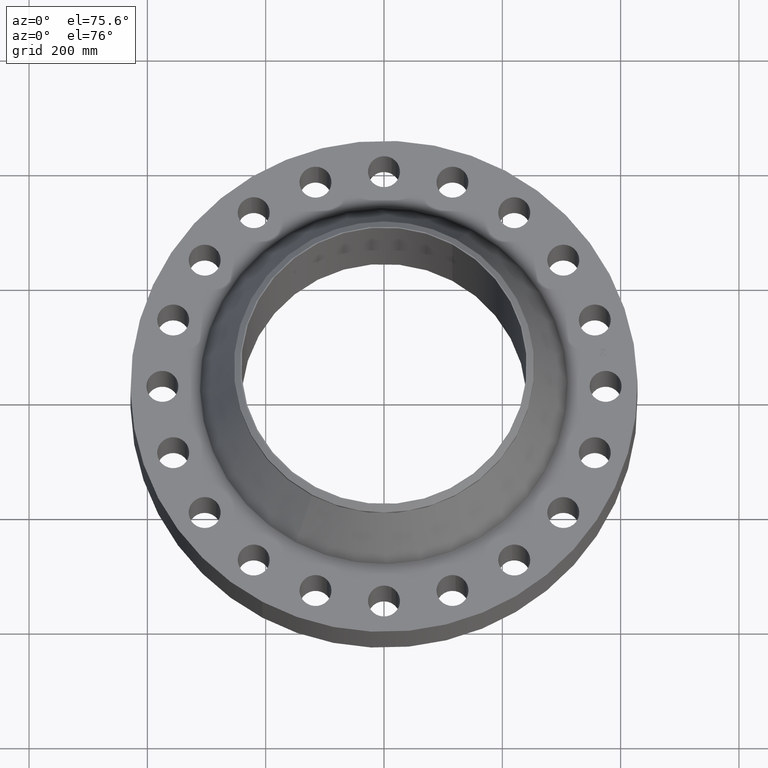
[diagram: clean part render]
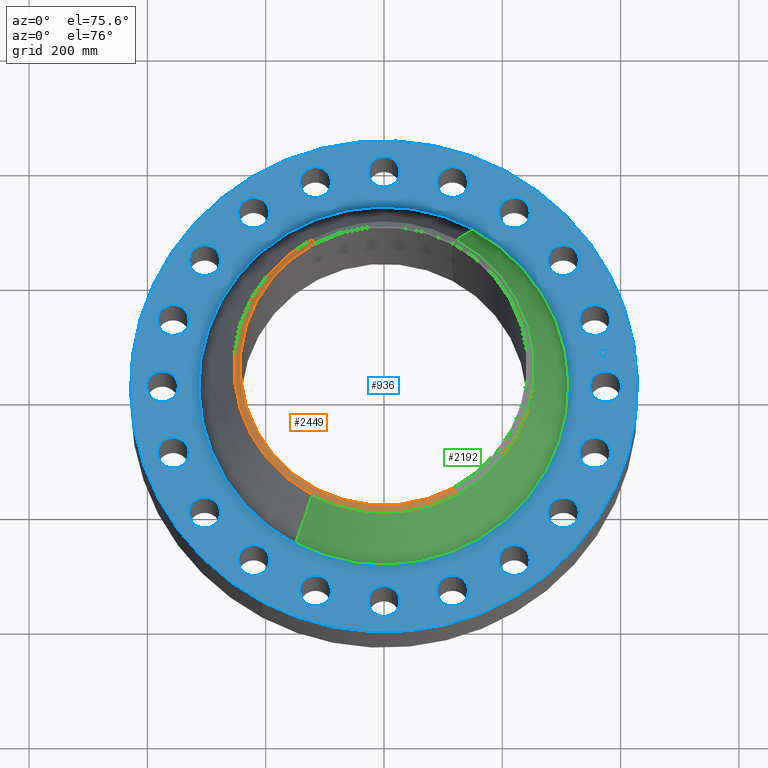
[diagram: same view with three faces highlighted in distinct colors, each labeled with its STEP entity id]
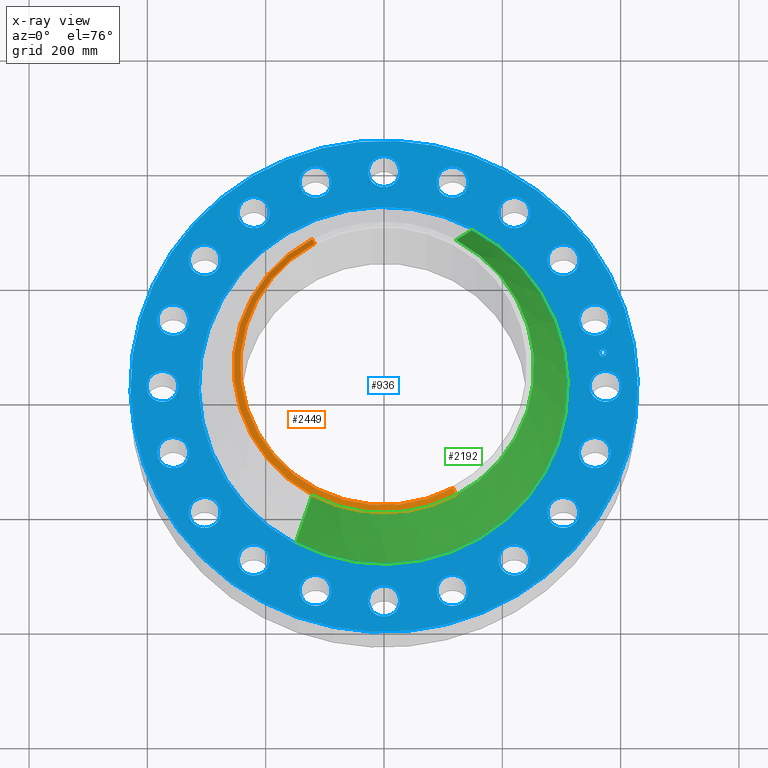
[diagram: x-ray of the same camera — body ghosted, the three highlighted faces saturated]
A machine part, auxiliary view with three faces highlighted in distinct colors.
The next image is the same camera in x-ray (body ghosted, the three faces saturated) — at least one of them is partly hidden behind the body in this view.
Their STEP definitions:

[orange] entity #2449 — the highlighted conical surface has half-angle 52.5 deg.
#2119=AXIS2_PLACEMENT_3D('Circle Axis2P3D',#2117,#2118,$) ;
#2428=AXIS2_PLACEMENT_3D('Cone Axis2P3D',#2425,#2426,#2427) ;
#2432=AXIS2_PLACEMENT_3D('Circle Axis2P3D',#2430,#2431,$) ;
#2439=AXIS2_PLACEMENT_3D('Circle Axis2P3D',#2437,#2438,$) ;
#2112=CARTESIAN_POINT('Vertex',(4.59229265917,-8.40613532712,9.75000000004)) ;
#2114=CARTESIAN_POINT('Vertex',(-4.59229265917,8.40613532712,9.75000000004)) ;
#2117=CARTESIAN_POINT('Axis2P3D Location',(5.59482469102E-016,3.35689481461E-015,9.75000000004)) ;
#2384=CARTESIAN_POINT('Line Origine',(-4.69327402262,8.59098047303,9.58837797698)) ;
#2388=CARTESIAN_POINT('Vertex',(-4.79425538604,8.7758256189,9.42675595389)) ;
#2391=CARTESIAN_POINT('Line Origine',(4.69327402262,-8.59098047303,9.58837797698)) ;
#2395=CARTESIAN_POINT('Vertex',(4.79425538605,-8.77582561892,9.42675595394)) ;
#2425=CARTESIAN_POINT('Axis2P3D Location',(0.,0.,9.75000000004)) ;
#2430=CARTESIAN_POINT('Axis2P3D Location',(0.,0.,9.42675595394)) ;
#2434=CARTESIAN_POINT('Vertex',(-4.79425538604,-8.7758256189,9.42675595389)) ;
#2437=CARTESIAN_POINT('Axis2P3D Location',(0.,0.,9.42675595394)) ;
#2118=DIRECTION('Axis2P3D Direction',(0.,0.,-0.0393700787402)) ;
#2385=DIRECTION('Vector Direction',(-0.014974561121,0.02741075027,-0.023966985394)) ;
#2392=DIRECTION('Vector Direction',(0.014974561121,-0.02741075027,-0.023966985394)) ;
#2426=DIRECTION('Axis2P3D Direction',(-0.,-0.,-0.0393700787402)) ;
#2427=DIRECTION('Axis2P3D XDirection',(0.0188750212049,-0.0345504945626,0.)) ;
#2431=DIRECTION('Axis2P3D Direction',(-0.,0.,-0.0393700787402)) ;
#2438=DIRECTION('Axis2P3D Direction',(-0.,0.,-0.0393700787402)) ;
#2386=VECTOR('Line Direction',#2385,0.0393700787402) ;
#2393=VECTOR('Line Direction',#2392,0.0393700787402) ;
#2443=ORIENTED_EDGE('',*,*,#2397,.F.) ;
#2444=ORIENTED_EDGE('',*,*,#2121,.F.) ;
#2445=ORIENTED_EDGE('',*,*,#2390,.T.) ;
#2446=ORIENTED_EDGE('',*,*,#2436,.T.) ;
#2447=ORIENTED_EDGE('',*,*,#2441,.F.) ;
#2449=ADVANCED_FACE('PartBody',(#2448),#2429,.T.) ;
#2120=CIRCLE('generated circle',#2119,9.5787401575) ;
#2433=CIRCLE('generated circle',#2432,10.) ;
#2440=CIRCLE('generated circle',#2439,10.) ;
#2429=CONICAL_SURFACE('Cone',#2428,9.57874015752,0.916297857297) ;
#2121=EDGE_CURVE('',#2115,#2113,#2120,.F.) ;
#2390=EDGE_CURVE('',#2115,#2389,#2387,.T.) ;
#2397=EDGE_CURVE('',#2113,#2396,#2394,.T.) ;
#2436=EDGE_CURVE('',#2389,#2435,#2433,.F.) ;
#2441=EDGE_CURVE('',#2396,#2435,#2440,.T.) ;
#2442=EDGE_LOOP('',(#2443,#2444,#2445,#2446,#2447)) ;
#2448=FACE_OUTER_BOUND('',#2442,.T.) ;
#2387=LINE('Line',#2384,#2386) ;
#2394=LINE('Line',#2391,#2393) ;
#2113=VERTEX_POINT('',#2112) ;
#2115=VERTEX_POINT('',#2114) ;
#2389=VERTEX_POINT('',#2388) ;
#2396=VERTEX_POINT('',#2395) ;
#2435=VERTEX_POINT('',#2434) ;

[blue] entity #936 — the highlighted planar face has unit normal (0, 0, -1).
#119=AXIS2_PLACEMENT_3D('Circle Axis2P3D',#117,#118,$) ;
#534=AXIS2_PLACEMENT_3D('Plane Axis2P3D',#531,#532,#533) ;
#538=AXIS2_PLACEMENT_3D('Circle Axis2P3D',#536,#537,$) ;
#547=AXIS2_PLACEMENT_3D('Circle Axis2P3D',#545,#546,$) ;
#560=AXIS2_PLACEMENT_3D('Circle Axis2P3D',#558,#559,$) ;
#569=AXIS2_PLACEMENT_3D('Circle Axis2P3D',#567,#568,$) ;
#578=AXIS2_PLACEMENT_3D('Circle Axis2P3D',#576,#577,$) ;
#587=AXIS2_PLACEMENT_3D('Circle Axis2P3D',#585,#586,$) ;
#596=AXIS2_PLACEMENT_3D('Circle Axis2P3D',#594,#595,$) ;
#605=AXIS2_PLACEMENT_3D('Circle Axis2P3D',#603,#604,$) ;
#614=AXIS2_PLACEMENT_3D('Circle Axis2P3D',#612,#613,$) ;
#623=AXIS2_PLACEMENT_3D('Circle Axis2P3D',#621,#622,$) ;
#632=AXIS2_PLACEMENT_3D('Circle Axis2P3D',#630,#631,$) ;
#641=AXIS2_PLACEMENT_3D('Circle Axis2P3D',#639,#640,$) ;
#650=AXIS2_PLACEMENT_3D('Circle Axis2P3D',#648,#649,$) ;
#659=AXIS2_PLACEMENT_3D('Circle Axis2P3D',#657,#658,$) ;
#668=AXIS2_PLACEMENT_3D('Circle Axis2P3D',#666,#667,$) ;
#677=AXIS2_PLACEMENT_3D('Circle Axis2P3D',#675,#676,$) ;
#686=AXIS2_PLACEMENT_3D('Circle Axis2P3D',#684,#685,$) ;
#695=AXIS2_PLACEMENT_3D('Circle Axis2P3D',#693,#694,$) ;
#704=AXIS2_PLACEMENT_3D('Circle Axis2P3D',#702,#703,$) ;
#713=AXIS2_PLACEMENT_3D('Circle Axis2P3D',#711,#712,$) ;
#722=AXIS2_PLACEMENT_3D('Circle Axis2P3D',#720,#721,$) ;
#731=AXIS2_PLACEMENT_3D('Circle Axis2P3D',#729,#730,$) ;
#740=AXIS2_PLACEMENT_3D('Circle Axis2P3D',#738,#739,$) ;
#749=AXIS2_PLACEMENT_3D('Circle Axis2P3D',#747,#748,$) ;
#758=AXIS2_PLACEMENT_3D('Circle Axis2P3D',#756,#757,$) ;
#767=AXIS2_PLACEMENT_3D('Circle Axis2P3D',#765,#766,$) ;
#776=AXIS2_PLACEMENT_3D('Circle Axis2P3D',#774,#775,$) ;
#785=AXIS2_PLACEMENT_3D('Circle Axis2P3D',#783,#784,$) ;
#794=AXIS2_PLACEMENT_3D('Circle Axis2P3D',#792,#793,$) ;
#803=AXIS2_PLACEMENT_3D('Circle Axis2P3D',#801,#802,$) ;
#812=AXIS2_PLACEMENT_3D('Circle Axis2P3D',#810,#811,$) ;
#821=AXIS2_PLACEMENT_3D('Circle Axis2P3D',#819,#820,$) ;
#830=AXIS2_PLACEMENT_3D('Circle Axis2P3D',#828,#829,$) ;
#839=AXIS2_PLACEMENT_3D('Circle Axis2P3D',#837,#838,$) ;
#848=AXIS2_PLACEMENT_3D('Circle Axis2P3D',#846,#847,$) ;
#857=AXIS2_PLACEMENT_3D('Circle Axis2P3D',#855,#856,$) ;
#866=AXIS2_PLACEMENT_3D('Circle Axis2P3D',#864,#865,$) ;
#875=AXIS2_PLACEMENT_3D('Circle Axis2P3D',#873,#874,$) ;
#884=AXIS2_PLACEMENT_3D('Circle Axis2P3D',#882,#883,$) ;
#893=AXIS2_PLACEMENT_3D('Circle Axis2P3D',#891,#892,$) ;
#902=AXIS2_PLACEMENT_3D('Circle Axis2P3D',#900,#901,$) ;
#911=AXIS2_PLACEMENT_3D('Circle Axis2P3D',#909,#910,$) ;
#920=AXIS2_PLACEMENT_3D('Circle Axis2P3D',#918,#919,$) ;
#929=AXIS2_PLACEMENT_3D('Circle Axis2P3D',#927,#928,$) ;
#46=CARTESIAN_POINT('Vertex',(13.8153745717,0.510588198614,4.25)) ;
#72=CARTESIAN_POINT('Vertex',(15.6846254285,-0.510588198595,4.25000000002)) ;
#76=CARTESIAN_POINT('Control Point',(13.8153745717,0.510588198614,4.25000000002)) ;
#77=CARTESIAN_POINT('Control Point',(13.8955775784,0.657398817602,4.25000000002)) ;
#78=CARTESIAN_POINT('Control Point',(14.0046067827,0.788461613052,4.25000000002)) ;
#79=CARTESIAN_POINT('Control Point',(14.1383624582,0.89620437463,4.25000000002)) ;
#80=CARTESIAN_POINT('Control Point',(14.4409125924,1.05343894857,4.25000000001)) ;
#81=CARTESIAN_POINT('Control Point',(14.7804539547,1.08459915197,4.25000000001)) ;
#82=CARTESIAN_POINT('Control Point',(14.9512191372,1.06620524416,4.25000000001)) ;
#83=CARTESIAN_POINT('Control Point',(15.2763360223,0.963451626043,4.25000000001)) ;
#84=CARTESIAN_POINT('Control Point',(15.5384616132,0.745393217405,4.25000000001)) ;
#85=CARTESIAN_POINT('Control Point',(15.6462043747,0.611637541935,4.25000000001)) ;
#86=CARTESIAN_POINT('Control Point',(15.8034389487,0.309087407674,4.25)) ;
#87=CARTESIAN_POINT('Control Point',(15.8345991521,-0.0304539546164,4.25)) ;
#88=CARTESIAN_POINT('Control Point',(15.8162052443,-0.2012191371,4.25)) ;
#89=CARTESIAN_POINT('Control Point',(15.7648284352,-0.363777579626,4.25)) ;
#90=CARTESIAN_POINT('Control Point',(15.6846254285,-0.510588198614,4.25)) ;
#117=CARTESIAN_POINT('Axis2P3D Location',(14.7500000001,0.,4.25)) ;
#531=CARTESIAN_POINT('Axis2P3D Location',(0.,16.8750000001,4.25000000002)) ;
#536=CARTESIAN_POINT('Axis2P3D Location',(-1.28099106126E-011,-2.99882603439E-012,4.25000000002)) ;
#540=CARTESIAN_POINT('Vertex',(8.09030596398,14.809205732,4.25000000002)) ;
#542=CARTESIAN_POINT('Vertex',(-8.090305964,-14.809205732,4.25000000002)) ;
#545=CARTESIAN_POINT('Axis2P3D Location',(1.28099106126E-011,-1.69993153412E-011,4.25000000002)) ;
#558=CARTESIAN_POINT('Axis2P3D Location',(3.08565771359E-011,9.81332250806E-012,4.25000000002)) ;
#562=CARTESIAN_POINT('Vertex',(-5.90997851415,-10.8181431057,4.25000000002)) ;
#564=CARTESIAN_POINT('Vertex',(5.90997851414,10.8181431057,4.25000000002)) ;
#567=CARTESIAN_POINT('Axis2P3D Location',(-2.23792987641E-015,2.66671724073E-011,4.25000000002)) ;
#576=CARTESIAN_POINT('Axis2P3D Location',(14.0280836154,-4.55800066703,4.25000000002)) ;
#580=CARTESIAN_POINT('Vertex',(14.7591847889,-5.33241404122,4.25000000002)) ;
#582=CARTESIAN_POINT('Vertex',(13.2969824419,-3.78358729286,4.25)) ;
#585=CARTESIAN_POINT('Axis2P3D Location',(14.0280836154,-4.55800066707,4.25000000002)) ;
#594=CARTESIAN_POINT('Axis2P3D Location',(11.9330006671,-8.66983247137,4.25000000002)) ;
#598=CARTESIAN_POINT('Vertex',(12.3890123089,-9.63226604439,4.25)) ;
#600=CARTESIAN_POINT('Vertex',(11.4769890253,-7.70739889831,4.25)) ;
#603=CARTESIAN_POINT('Axis2P3D Location',(11.9330006671,-8.66983247136,4.25000000002)) ;
#612=CARTESIAN_POINT('Axis2P3D Location',(8.66983247136,-11.9330006671,4.25000000002)) ;
#616=CARTESIAN_POINT('Vertex',(8.80611698481,-12.9892447352,4.25000000002)) ;
#618=CARTESIAN_POINT('Vertex',(8.53354795792,-10.876756599,4.25)) ;
#621=CARTESIAN_POINT('Axis2P3D Location',(8.66983247136,-11.9330006671,4.25000000002)) ;
#630=CARTESIAN_POINT('Axis2P3D Location',(4.55800066706,-14.0280836154,4.25000000002)) ;
#634=CARTESIAN_POINT('Vertex',(4.36121757436,-15.0747456499,4.25000000002)) ;
#636=CARTESIAN_POINT('Vertex',(4.75478375973,-12.9814215809,4.25)) ;
#639=CARTESIAN_POINT('Axis2P3D Location',(4.55800066706,-14.0280836154,4.25000000002)) ;
#648=CARTESIAN_POINT('Axis2P3D Location',(-3.66662430951E-011,-14.7500000001,4.25000000002)) ;
#652=CARTESIAN_POINT('Vertex',(-0.510588198622,-15.6846254285,4.25000000002)) ;
#654=CARTESIAN_POINT('Vertex',(0.510588198614,-13.8153745717,4.25)) ;
#657=CARTESIAN_POINT('Axis2P3D Location',(1.98102951366E-011,-14.7500000001,4.25000000002)) ;
#666=CARTESIAN_POINT('Axis2P3D Location',(-4.55800066702,-14.0280836154,4.25000000002)) ;
#670=CARTESIAN_POINT('Vertex',(-5.33241404125,-14.7591847889,4.25000000002)) ;
#672=CARTESIAN_POINT('Vertex',(-3.78358729286,-13.2969824419,4.25)) ;
#675=CARTESIAN_POINT('Axis2P3D Location',(-4.55800066702,-14.0280836154,4.25000000002)) ;
#684=CARTESIAN_POINT('Axis2P3D Location',(-8.66983247135,-11.9330006671,4.25000000002)) ;
#688=CARTESIAN_POINT('Vertex',(-9.63226604439,-12.3890123089,4.25)) ;
#690=CARTESIAN_POINT('Vertex',(-7.70739889831,-11.4769890253,4.25)) ;
#693=CARTESIAN_POINT('Axis2P3D Location',(-8.66983247132,-11.9330006671,4.25000000002)) ;
#702=CARTESIAN_POINT('Axis2P3D Location',(-11.9330006671,-8.6698324713,4.25000000002)) ;
#706=CARTESIAN_POINT('Vertex',(-12.9892447352,-8.80611698478,4.25000000002)) ;
#708=CARTESIAN_POINT('Vertex',(-10.876756599,-8.53354795792,4.25)) ;
#711=CARTESIAN_POINT('Axis2P3D Location',(-11.9330006671,-8.66983247137,4.25000000002)) ;
#720=CARTESIAN_POINT('Axis2P3D Location',(-14.0280836154,-4.55800066707,4.25000000002)) ;
#724=CARTESIAN_POINT('Vertex',(-15.0747456499,-4.3612175744,4.25000000002)) ;
#726=CARTESIAN_POINT('Vertex',(-12.9814215809,-4.75478375973,4.25)) ;
#729=CARTESIAN_POINT('Axis2P3D Location',(-14.0280836154,-4.558000667,4.25000000002)) ;
#738=CARTESIAN_POINT('Axis2P3D Location',(-14.7500000001,-2.98092259538E-011,4.25000000002)) ;
#742=CARTESIAN_POINT('Vertex',(-15.6846254285,0.510588198648,4.25000000002)) ;
#744=CARTESIAN_POINT('Vertex',(-13.8153745717,-0.510588198614,4.25)) ;
#747=CARTESIAN_POINT('Axis2P3D Location',(-14.7500000001,2.66671724073E-011,4.25000000002)) ;
#756=CARTESIAN_POINT('Axis2P3D Location',(-14.0280836154,4.55800066705,4.25000000002)) ;
#760=CARTESIAN_POINT('Vertex',(-14.7591847889,5.3324140412,4.25000000002)) ;
#762=CARTESIAN_POINT('Vertex',(-13.2969824419,3.78358729286,4.25)) ;
#765=CARTESIAN_POINT('Axis2P3D Location',(-14.0280836154,4.55800066705,4.25000000002)) ;
#774=CARTESIAN_POINT('Axis2P3D Location',(-11.9330006671,8.66983247135,4.25000000002)) ;
#778=CARTESIAN_POINT('Vertex',(-12.3890123089,9.63226604439,4.25)) ;
#780=CARTESIAN_POINT('Vertex',(-11.4769890253,7.70739889831,4.25)) ;
#783=CARTESIAN_POINT('Axis2P3D Location',(-11.9330006671,8.66983247135,4.25000000002)) ;
#792=CARTESIAN_POINT('Axis2P3D Location',(-8.66983247136,11.9330006671,4.25000000002)) ;
#796=CARTESIAN_POINT('Vertex',(-8.80611698481,12.9892447352,4.25000000002)) ;
#798=CARTESIAN_POINT('Vertex',(-8.53354795792,10.876756599,4.25)) ;
#801=CARTESIAN_POINT('Axis2P3D Location',(-8.66983247136,11.9330006671,4.25000000002)) ;
#810=CARTESIAN_POINT('Axis2P3D Location',(-4.55800066706,14.0280836154,4.25000000002)) ;
#814=CARTESIAN_POINT('Vertex',(-4.36121757436,15.0747456499,4.25000000002)) ;
#816=CARTESIAN_POINT('Vertex',(-4.75478375973,12.9814215809,4.25)) ;
#819=CARTESIAN_POINT('Axis2P3D Location',(-4.55800066706,14.0280836154,4.25000000002)) ;
#828=CARTESIAN_POINT('Axis2P3D Location',(3.66662430951E-011,14.7500000001,4.25000000002)) ;
#832=CARTESIAN_POINT('Vertex',(0.510588198622,15.6846254285,4.25000000002)) ;
#834=CARTESIAN_POINT('Vertex',(-0.510588198614,13.8153745717,4.25)) ;
#837=CARTESIAN_POINT('Axis2P3D Location',(-5.06643546014E-011,14.7500000001,4.25000000002)) ;
#846=CARTESIAN_POINT('Axis2P3D Location',(4.55800066706,14.0280836154,4.25000000002)) ;
#850=CARTESIAN_POINT('Vertex',(5.33241404125,14.7591847889,4.25000000002)) ;
#852=CARTESIAN_POINT('Vertex',(3.78358729286,13.2969824419,4.25)) ;
#855=CARTESIAN_POINT('Axis2P3D Location',(4.55800066706,14.0280836154,4.25000000002)) ;
#864=CARTESIAN_POINT('Axis2P3D Location',(8.66983247135,11.933000667,4.25000000002)) ;
#868=CARTESIAN_POINT('Vertex',(9.63226604439,12.3890123089,4.25)) ;
#870=CARTESIAN_POINT('Vertex',(7.70739889831,11.4769890253,4.25)) ;
#873=CARTESIAN_POINT('Axis2P3D Location',(8.66983247132,11.9330006671,4.25000000002)) ;
#882=CARTESIAN_POINT('Axis2P3D Location',(11.9330006671,8.66983247135,4.25000000002)) ;
#886=CARTESIAN_POINT('Vertex',(12.9892447352,8.80611698476,4.25000000002)) ;
#888=CARTESIAN_POINT('Vertex',(10.876756599,8.53354795792,4.25)) ;
#891=CARTESIAN_POINT('Axis2P3D Location',(11.9330006671,8.66983247135,4.25000000002)) ;
#900=CARTESIAN_POINT('Axis2P3D Location',(14.0280836154,4.55800066705,4.25000000002)) ;
#904=CARTESIAN_POINT('Vertex',(15.0747456499,4.36121757438,4.25000000002)) ;
#906=CARTESIAN_POINT('Vertex',(12.9814215809,4.75478375973,4.25)) ;
#909=CARTESIAN_POINT('Axis2P3D Location',(14.0280836154,4.55800066705,4.25000000002)) ;
#918=CARTESIAN_POINT('Axis2P3D Location',(14.5684030238,2.30740835936,4.25000000002)) ;
#922=CARTESIAN_POINT('Vertex',(14.5296854937,2.55186122368,4.25000000002)) ;
#924=CARTESIAN_POINT('Vertex',(14.6071205539,2.06295549506,4.25000000002)) ;
#927=CARTESIAN_POINT('Axis2P3D Location',(14.5684030238,2.30740835937,4.25000000002)) ;
#118=DIRECTION('Axis2P3D Direction',(0.,-0.,-0.0393700787402)) ;
#532=DIRECTION('Axis2P3D Direction',(0.,0.,-0.0393700787402)) ;
#533=DIRECTION('Axis2P3D XDirection',(0.0393700787402,0.,0.)) ;
#537=DIRECTION('Axis2P3D Direction',(0.,0.,-0.0393700787402)) ;
#546=DIRECTION('Axis2P3D Direction',(0.,0.,-0.0393700787402)) ;
#559=DIRECTION('Axis2P3D Direction',(0.,0.,-0.0393700787402)) ;
#568=DIRECTION('Axis2P3D Direction',(0.,0.,-0.0393700787402)) ;
#577=DIRECTION('Axis2P3D Direction',(0.,0.,-0.0393700787402)) ;
#586=DIRECTION('Axis2P3D Direction',(0.,0.,-0.0393700787402)) ;
#595=DIRECTION('Axis2P3D Direction',(0.,0.,-0.0393700787402)) ;
#604=DIRECTION('Axis2P3D Direction',(0.,0.,-0.0393700787402)) ;
#613=DIRECTION('Axis2P3D Direction',(0.,0.,-0.0393700787402)) ;
#622=DIRECTION('Axis2P3D Direction',(0.,0.,-0.0393700787402)) ;
#631=DIRECTION('Axis2P3D Direction',(0.,0.,-0.0393700787402)) ;
#640=DIRECTION('Axis2P3D Direction',(0.,0.,-0.0393700787402)) ;
#649=DIRECTION('Axis2P3D Direction',(0.,0.,-0.0393700787402)) ;
#658=DIRECTION('Axis2P3D Direction',(0.,0.,-0.0393700787402)) ;
#667=DIRECTION('Axis2P3D Direction',(0.,0.,-0.0393700787402)) ;
#676=DIRECTION('Axis2P3D Direction',(0.,0.,-0.0393700787402)) ;
#685=DIRECTION('Axis2P3D Direction',(0.,0.,-0.0393700787402)) ;
#694=DIRECTION('Axis2P3D Direction',(0.,0.,-0.0393700787402)) ;
#703=DIRECTION('Axis2P3D Direction',(0.,0.,-0.0393700787402)) ;
#712=DIRECTION('Axis2P3D Direction',(0.,0.,-0.0393700787402)) ;
#721=DIRECTION('Axis2P3D Direction',(0.,0.,-0.0393700787402)) ;
#730=DIRECTION('Axis2P3D Direction',(0.,0.,-0.0393700787402)) ;
#739=DIRECTION('Axis2P3D Direction',(0.,0.,-0.0393700787402)) ;
#748=DIRECTION('Axis2P3D Direction',(0.,0.,-0.0393700787402)) ;
#757=DIRECTION('Axis2P3D Direction',(0.,0.,-0.0393700787402)) ;
#766=DIRECTION('Axis2P3D Direction',(0.,0.,-0.0393700787402)) ;
#775=DIRECTION('Axis2P3D Direction',(0.,0.,-0.0393700787402)) ;
#784=DIRECTION('Axis2P3D Direction',(0.,0.,-0.0393700787402)) ;
#793=DIRECTION('Axis2P3D Direction',(0.,0.,-0.0393700787402)) ;
#802=DIRECTION('Axis2P3D Direction',(0.,0.,-0.0393700787402)) ;
#811=DIRECTION('Axis2P3D Direction',(0.,0.,-0.0393700787402)) ;
#820=DIRECTION('Axis2P3D Direction',(0.,0.,-0.0393700787402)) ;
#829=DIRECTION('Axis2P3D Direction',(0.,0.,-0.0393700787402)) ;
#838=DIRECTION('Axis2P3D Direction',(0.,0.,-0.0393700787402)) ;
#847=DIRECTION('Axis2P3D Direction',(0.,0.,-0.0393700787402)) ;
#856=DIRECTION('Axis2P3D Direction',(0.,0.,-0.0393700787402)) ;
#865=DIRECTION('Axis2P3D Direction',(0.,0.,-0.0393700787402)) ;
#874=DIRECTION('Axis2P3D Direction',(0.,0.,-0.0393700787402)) ;
#883=DIRECTION('Axis2P3D Direction',(0.,0.,-0.0393700787402)) ;
#892=DIRECTION('Axis2P3D Direction',(0.,0.,-0.0393700787402)) ;
#901=DIRECTION('Axis2P3D Direction',(0.,0.,-0.0393700787402)) ;
#910=DIRECTION('Axis2P3D Direction',(0.,0.,-0.0393700787402)) ;
#919=DIRECTION('Axis2P3D Direction',(0.,0.,-0.0393700787402)) ;
#928=DIRECTION('Axis2P3D Direction',(0.,0.,-0.0393700787402)) ;
#551=ORIENTED_EDGE('',*,*,#544,.F.) ;
#552=ORIENTED_EDGE('',*,*,#549,.F.) ;
#555=ORIENTED_EDGE('',*,*,#91,.T.) ;
#556=ORIENTED_EDGE('',*,*,#121,.T.) ;
#573=ORIENTED_EDGE('',*,*,#566,.T.) ;
#574=ORIENTED_EDGE('',*,*,#571,.T.) ;
#591=ORIENTED_EDGE('',*,*,#584,.T.) ;
#592=ORIENTED_EDGE('',*,*,#589,.T.) ;
#609=ORIENTED_EDGE('',*,*,#602,.T.) ;
#610=ORIENTED_EDGE('',*,*,#607,.T.) ;
#627=ORIENTED_EDGE('',*,*,#620,.T.) ;
#628=ORIENTED_EDGE('',*,*,#625,.T.) ;
#645=ORIENTED_EDGE('',*,*,#638,.T.) ;
#646=ORIENTED_EDGE('',*,*,#643,.T.) ;
#663=ORIENTED_EDGE('',*,*,#656,.T.) ;
#664=ORIENTED_EDGE('',*,*,#661,.T.) ;
#681=ORIENTED_EDGE('',*,*,#674,.T.) ;
#682=ORIENTED_EDGE('',*,*,#679,.T.) ;
#699=ORIENTED_EDGE('',*,*,#692,.T.) ;
#700=ORIENTED_EDGE('',*,*,#697,.T.) ;
#717=ORIENTED_EDGE('',*,*,#710,.T.) ;
#718=ORIENTED_EDGE('',*,*,#715,.T.) ;
#735=ORIENTED_EDGE('',*,*,#728,.T.) ;
#736=ORIENTED_EDGE('',*,*,#733,.T.) ;
#753=ORIENTED_EDGE('',*,*,#746,.T.) ;
#754=ORIENTED_EDGE('',*,*,#751,.T.) ;
#771=ORIENTED_EDGE('',*,*,#764,.T.) ;
#772=ORIENTED_EDGE('',*,*,#769,.T.) ;
#789=ORIENTED_EDGE('',*,*,#782,.T.) ;
#790=ORIENTED_EDGE('',*,*,#787,.T.) ;
#807=ORIENTED_EDGE('',*,*,#800,.T.) ;
#808=ORIENTED_EDGE('',*,*,#805,.T.) ;
#825=ORIENTED_EDGE('',*,*,#818,.T.) ;
#826=ORIENTED_EDGE('',*,*,#823,.T.) ;
#843=ORIENTED_EDGE('',*,*,#836,.T.) ;
#844=ORIENTED_EDGE('',*,*,#841,.T.) ;
#861=ORIENTED_EDGE('',*,*,#854,.T.) ;
#862=ORIENTED_EDGE('',*,*,#859,.T.) ;
#879=ORIENTED_EDGE('',*,*,#872,.T.) ;
#880=ORIENTED_EDGE('',*,*,#877,.T.) ;
#897=ORIENTED_EDGE('',*,*,#890,.T.) ;
#898=ORIENTED_EDGE('',*,*,#895,.T.) ;
#915=ORIENTED_EDGE('',*,*,#908,.T.) ;
#916=ORIENTED_EDGE('',*,*,#913,.T.) ;
#933=ORIENTED_EDGE('',*,*,#926,.T.) ;
#934=ORIENTED_EDGE('',*,*,#931,.T.) ;
#557=FACE_BOUND('',#554,.T.) ;
#575=FACE_BOUND('',#572,.T.) ;
#593=FACE_BOUND('',#590,.T.) ;
#611=FACE_BOUND('',#608,.T.) ;
#629=FACE_BOUND('',#626,.T.) ;
#647=FACE_BOUND('',#644,.T.) ;
#665=FACE_BOUND('',#662,.T.) ;
#683=FACE_BOUND('',#680,.T.) ;
#701=FACE_BOUND('',#698,.T.) ;
#719=FACE_BOUND('',#716,.T.) ;
#737=FACE_BOUND('',#734,.T.) ;
#755=FACE_BOUND('',#752,.T.) ;
#773=FACE_BOUND('',#770,.T.) ;
#791=FACE_BOUND('',#788,.T.) ;
#809=FACE_BOUND('',#806,.T.) ;
#827=FACE_BOUND('',#824,.T.) ;
#845=FACE_BOUND('',#842,.T.) ;
#863=FACE_BOUND('',#860,.T.) ;
#881=FACE_BOUND('',#878,.T.) ;
#899=FACE_BOUND('',#896,.T.) ;
#917=FACE_BOUND('',#914,.T.) ;
#935=FACE_BOUND('',#932,.T.) ;
#936=ADVANCED_FACE('PartBody',(#553,#557,#575,#593,#611,#629,#647,#665,#683,#701,#719,#737,#755,#773,#791,#809,#827,#845,#863,#881,#899,#917,#935),#535,.F.) ;
#75=B_SPLINE_CURVE_WITH_KNOTS('',5,(#76,#77,#78,#79,#80,#81,#82,#83,#84,#85,#86,#87,#88,#89,#90),.UNSPECIFIED.,.F.,.U.,(6,3,3,3,6),(-42.4916114361,-21.2458057181,0.,21.2458057181,42.4916114361),.UNSPECIFIED.) ;
#120=CIRCLE('generated circle',#119,1.065) ;
#539=CIRCLE('generated circle',#538,16.8750000001) ;
#548=CIRCLE('generated circle',#547,16.8750000001) ;
#561=CIRCLE('generated circle',#560,12.3272083739) ;
#570=CIRCLE('generated circle',#569,12.3272083739) ;
#579=CIRCLE('generated circle',#578,1.06500000001) ;
#588=CIRCLE('generated circle',#587,1.06500000001) ;
#597=CIRCLE('generated circle',#596,1.06499999998) ;
#606=CIRCLE('generated circle',#605,1.06499999998) ;
#615=CIRCLE('generated circle',#614,1.06500000001) ;
#624=CIRCLE('generated circle',#623,1.06500000001) ;
#633=CIRCLE('generated circle',#632,1.06499999999) ;
#642=CIRCLE('generated circle',#641,1.06499999999) ;
#651=CIRCLE('generated circle',#650,1.06499999997) ;
#660=CIRCLE('generated circle',#659,1.06499999997) ;
#669=CIRCLE('generated circle',#668,1.06500000001) ;
#678=CIRCLE('generated circle',#677,1.06500000001) ;
#687=CIRCLE('generated circle',#686,1.06499999999) ;
#696=CIRCLE('generated circle',#695,1.06499999999) ;
#705=CIRCLE('generated circle',#704,1.06499999998) ;
#714=CIRCLE('generated circle',#713,1.06499999998) ;
#723=CIRCLE('generated circle',#722,1.06500000002) ;
#732=CIRCLE('generated circle',#731,1.06500000002) ;
#741=CIRCLE('generated circle',#740,1.06500000002) ;
#750=CIRCLE('generated circle',#749,1.06500000002) ;
#759=CIRCLE('generated circle',#758,1.06499999998) ;
#768=CIRCLE('generated circle',#767,1.06499999998) ;
#777=CIRCLE('generated circle',#776,1.06499999998) ;
#786=CIRCLE('generated circle',#785,1.06499999998) ;
#795=CIRCLE('generated circle',#794,1.06500000001) ;
#804=CIRCLE('generated circle',#803,1.06500000001) ;
#813=CIRCLE('generated circle',#812,1.06499999999) ;
#822=CIRCLE('generated circle',#821,1.06499999999) ;
#831=CIRCLE('generated circle',#830,1.06499999997) ;
#840=CIRCLE('generated circle',#839,1.06499999997) ;
#849=CIRCLE('generated circle',#848,1.06500000001) ;
#858=CIRCLE('generated circle',#857,1.06500000001) ;
#867=CIRCLE('generated circle',#866,1.06499999999) ;
#876=CIRCLE('generated circle',#875,1.06499999999) ;
#885=CIRCLE('generated circle',#884,1.06499999997) ;
#894=CIRCLE('generated circle',#893,1.06499999997) ;
#903=CIRCLE('generated circle',#902,1.06500000002) ;
#912=CIRCLE('generated circle',#911,1.06500000002) ;
#921=CIRCLE('generated circle',#920,0.247500000014) ;
#930=CIRCLE('generated circle',#929,0.247500000014) ;
#91=EDGE_CURVE('',#47,#73,#75,.T.) ;
#121=EDGE_CURVE('',#73,#47,#120,.T.) ;
#544=EDGE_CURVE('',#541,#543,#539,.T.) ;
#549=EDGE_CURVE('',#543,#541,#548,.T.) ;
#566=EDGE_CURVE('',#563,#565,#561,.T.) ;
#571=EDGE_CURVE('',#565,#563,#570,.T.) ;
#584=EDGE_CURVE('',#581,#583,#579,.T.) ;
#589=EDGE_CURVE('',#583,#581,#588,.T.) ;
#602=EDGE_CURVE('',#599,#601,#597,.T.) ;
#607=EDGE_CURVE('',#601,#599,#606,.T.) ;
#620=EDGE_CURVE('',#617,#619,#615,.T.) ;
#625=EDGE_CURVE('',#619,#617,#624,.T.) ;
#638=EDGE_CURVE('',#635,#637,#633,.T.) ;
#643=EDGE_CURVE('',#637,#635,#642,.T.) ;
#656=EDGE_CURVE('',#653,#655,#651,.T.) ;
#661=EDGE_CURVE('',#655,#653,#660,.T.) ;
#674=EDGE_CURVE('',#671,#673,#669,.T.) ;
#679=EDGE_CURVE('',#673,#671,#678,.T.) ;
#692=EDGE_CURVE('',#689,#691,#687,.T.) ;
#697=EDGE_CURVE('',#691,#689,#696,.T.) ;
#710=EDGE_CURVE('',#707,#709,#705,.T.) ;
#715=EDGE_CURVE('',#709,#707,#714,.T.) ;
#728=EDGE_CURVE('',#725,#727,#723,.T.) ;
#733=EDGE_CURVE('',#727,#725,#732,.T.) ;
#746=EDGE_CURVE('',#743,#745,#741,.T.) ;
#751=EDGE_CURVE('',#745,#743,#750,.T.) ;
#764=EDGE_CURVE('',#761,#763,#759,.T.) ;
#769=EDGE_CURVE('',#763,#761,#768,.T.) ;
#782=EDGE_CURVE('',#779,#781,#777,.T.) ;
#787=EDGE_CURVE('',#781,#779,#786,.T.) ;
#800=EDGE_CURVE('',#797,#799,#795,.T.) ;
#805=EDGE_CURVE('',#799,#797,#804,.T.) ;
#818=EDGE_CURVE('',#815,#817,#813,.T.) ;
#823=EDGE_CURVE('',#817,#815,#822,.T.) ;
#836=EDGE_CURVE('',#833,#835,#831,.T.) ;
#841=EDGE_CURVE('',#835,#833,#840,.T.) ;
#854=EDGE_CURVE('',#851,#853,#849,.T.) ;
#859=EDGE_CURVE('',#853,#851,#858,.T.) ;
#872=EDGE_CURVE('',#869,#871,#867,.T.) ;
#877=EDGE_CURVE('',#871,#869,#876,.T.) ;
#890=EDGE_CURVE('',#887,#889,#885,.T.) ;
#895=EDGE_CURVE('',#889,#887,#894,.T.) ;
#908=EDGE_CURVE('',#905,#907,#903,.T.) ;
#913=EDGE_CURVE('',#907,#905,#912,.T.) ;
#926=EDGE_CURVE('',#923,#925,#921,.T.) ;
#931=EDGE_CURVE('',#925,#923,#930,.T.) ;
#550=EDGE_LOOP('',(#551,#552)) ;
#554=EDGE_LOOP('',(#555,#556)) ;
#572=EDGE_LOOP('',(#573,#574)) ;
#590=EDGE_LOOP('',(#591,#592)) ;
#608=EDGE_LOOP('',(#609,#610)) ;
#626=EDGE_LOOP('',(#627,#628)) ;
#644=EDGE_LOOP('',(#645,#646)) ;
#662=EDGE_LOOP('',(#663,#664)) ;
#680=EDGE_LOOP('',(#681,#682)) ;
#698=EDGE_LOOP('',(#699,#700)) ;
#716=EDGE_LOOP('',(#717,#718)) ;
#734=EDGE_LOOP('',(#735,#736)) ;
#752=EDGE_LOOP('',(#753,#754)) ;
#770=EDGE_LOOP('',(#771,#772)) ;
#788=EDGE_LOOP('',(#789,#790)) ;
#806=EDGE_LOOP('',(#807,#808)) ;
#824=EDGE_LOOP('',(#825,#826)) ;
#842=EDGE_LOOP('',(#843,#844)) ;
#860=EDGE_LOOP('',(#861,#862)) ;
#878=EDGE_LOOP('',(#879,#880)) ;
#896=EDGE_LOOP('',(#897,#898)) ;
#914=EDGE_LOOP('',(#915,#916)) ;
#932=EDGE_LOOP('',(#933,#934)) ;
#553=FACE_OUTER_BOUND('',#550,.T.) ;
#535=PLANE('',#534) ;
#47=VERTEX_POINT('',#46) ;
#73=VERTEX_POINT('',#72) ;
#541=VERTEX_POINT('',#540) ;
#543=VERTEX_POINT('',#542) ;
#563=VERTEX_POINT('',#562) ;
#565=VERTEX_POINT('',#564) ;
#581=VERTEX_POINT('',#580) ;
#583=VERTEX_POINT('',#582) ;
#599=VERTEX_POINT('',#598) ;
#601=VERTEX_POINT('',#600) ;
#617=VERTEX_POINT('',#616) ;
#619=VERTEX_POINT('',#618) ;
#635=VERTEX_POINT('',#634) ;
#637=VERTEX_POINT('',#636) ;
#653=VERTEX_POINT('',#652) ;
#655=VERTEX_POINT('',#654) ;
#671=VERTEX_POINT('',#670) ;
#673=VERTEX_POINT('',#672) ;
#689=VERTEX_POINT('',#688) ;
#691=VERTEX_POINT('',#690) ;
#707=VERTEX_POINT('',#706) ;
#709=VERTEX_POINT('',#708) ;
#725=VERTEX_POINT('',#724) ;
#727=VERTEX_POINT('',#726) ;
#743=VERTEX_POINT('',#742) ;
#745=VERTEX_POINT('',#744) ;
#761=VERTEX_POINT('',#760) ;
#763=VERTEX_POINT('',#762) ;
#779=VERTEX_POINT('',#778) ;
#781=VERTEX_POINT('',#780) ;
#797=VERTEX_POINT('',#796) ;
#799=VERTEX_POINT('',#798) ;
#815=VERTEX_POINT('',#814) ;
#817=VERTEX_POINT('',#816) ;
#833=VERTEX_POINT('',#832) ;
#835=VERTEX_POINT('',#834) ;
#851=VERTEX_POINT('',#850) ;
#853=VERTEX_POINT('',#852) ;
#869=VERTEX_POINT('',#868) ;
#871=VERTEX_POINT('',#870) ;
#887=VERTEX_POINT('',#886) ;
#889=VERTEX_POINT('',#888) ;
#905=VERTEX_POINT('',#904) ;
#907=VERTEX_POINT('',#906) ;
#923=VERTEX_POINT('',#922) ;
#925=VERTEX_POINT('',#924) ;

[green] entity #2192 — the highlighted conical surface has half-angle 24.485 deg.
#2011=AXIS2_PLACEMENT_3D('Circle Axis2P3D',#2009,#2010,$) ;
#2179=AXIS2_PLACEMENT_3D('Cone Axis2P3D',#2176,#2177,#2178) ;
#2183=AXIS2_PLACEMENT_3D('Circle Axis2P3D',#2181,#2182,$) ;
#1975=CARTESIAN_POINT('Vertex',(-5.85762134977,-10.7223039592,4.32026484818)) ;
#1982=CARTESIAN_POINT('Vertex',(5.85762134977,10.7223039592,4.32026484819)) ;
#2009=CARTESIAN_POINT('Axis2P3D Location',(0.,0.,4.32026484819)) ;
#2143=CARTESIAN_POINT('Line Origine',(-5.3259383679,-9.74906478903,6.75540016482)) ;
#2147=CARTESIAN_POINT('Vertex',(-4.79425538604,-8.7758256189,9.19053548148)) ;
#2154=CARTESIAN_POINT('Vertex',(4.79425538605,8.77582561891,9.19053548146)) ;
#2157=CARTESIAN_POINT('Line Origine',(5.3259383679,9.74906478903,6.75540016482)) ;
#2176=CARTESIAN_POINT('Axis2P3D Location',(0.,0.,9.19053548148)) ;
#2181=CARTESIAN_POINT('Axis2P3D Location',(0.,0.,9.19053548148)) ;
#2010=DIRECTION('Axis2P3D Direction',(-0.,0.,-0.0393700787402)) ;
#2144=DIRECTION('Vector Direction',(-0.00782293371329,-0.0143197841099,-0.0358294374944)) ;
#2158=DIRECTION('Vector Direction',(0.00782293371329,0.0143197841099,-0.0358294374944)) ;
#2177=DIRECTION('Axis2P3D Direction',(0.,0.,-0.0393700787402)) ;
#2178=DIRECTION('Axis2P3D XDirection',(0.0188750212049,0.0345504945626,0.)) ;
#2182=DIRECTION('Axis2P3D Direction',(-0.,0.,-0.0393700787402)) ;
#2145=VECTOR('Line Direction',#2144,0.0393700787402) ;
#2159=VECTOR('Line Direction',#2158,0.0393700787402) ;
#2187=ORIENTED_EDGE('',*,*,#2013,.F.) ;
#2188=ORIENTED_EDGE('',*,*,#2161,.T.) ;
#2189=ORIENTED_EDGE('',*,*,#2185,.T.) ;
#2190=ORIENTED_EDGE('',*,*,#2149,.F.) ;
#2192=ADVANCED_FACE('PartBody',(#2191),#2180,.T.) ;
#2012=CIRCLE('generated circle',#2011,12.2180002484) ;
#2184=CIRCLE('generated circle',#2183,10.) ;
#2180=CONICAL_SURFACE('Cone',#2179,10.,0.427348919185) ;
#2013=EDGE_CURVE('',#1983,#1976,#2012,.T.) ;
#2149=EDGE_CURVE('',#1976,#2148,#2146,.F.) ;
#2161=EDGE_CURVE('',#1983,#2155,#2160,.F.) ;
#2185=EDGE_CURVE('',#2155,#2148,#2184,.T.) ;
#2186=EDGE_LOOP('',(#2187,#2188,#2189,#2190)) ;
#2191=FACE_OUTER_BOUND('',#2186,.T.) ;
#2146=LINE('Line',#2143,#2145) ;
#2160=LINE('Line',#2157,#2159) ;
#1976=VERTEX_POINT('',#1975) ;
#1983=VERTEX_POINT('',#1982) ;
#2148=VERTEX_POINT('',#2147) ;
#2155=VERTEX_POINT('',#2154) ;